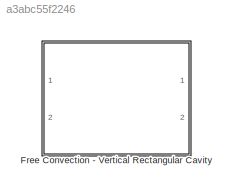
MODEL slx_a3abc55f2246
KIND library
CONFIG AbsTol = auto
CONFIG FixedStep = auto
CONFIG MaxStep = auto
CONFIG MinStep = auto
CONFIG RelTol = 1e-3
CONFIG SampleTimeConstraint = Unconstrained
CONFIG Solver = ode45
CONFIG SolverMode = Auto
CONFIG SolverName = ode45
CONFIG StartTime = 0.0
CONFIG StopTime = 10.0
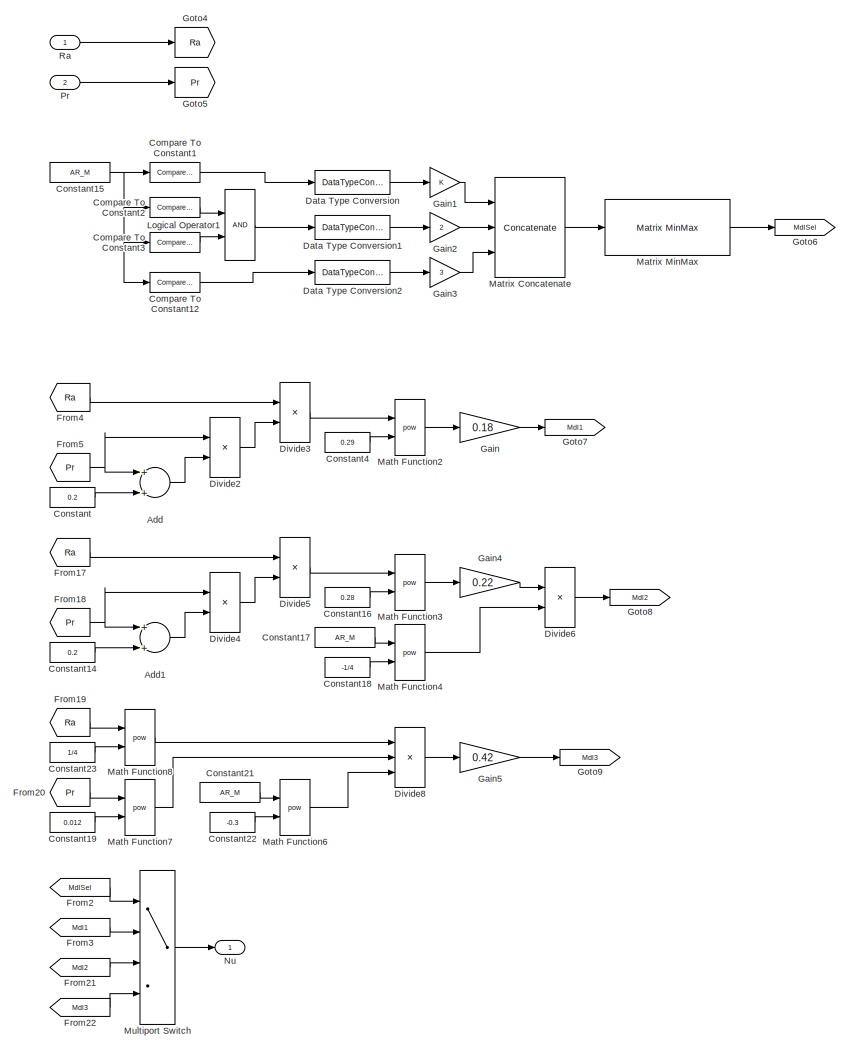
[diagram: Free Convection - Vertical Rectangular Cavity - part 1/2, left side, full height]
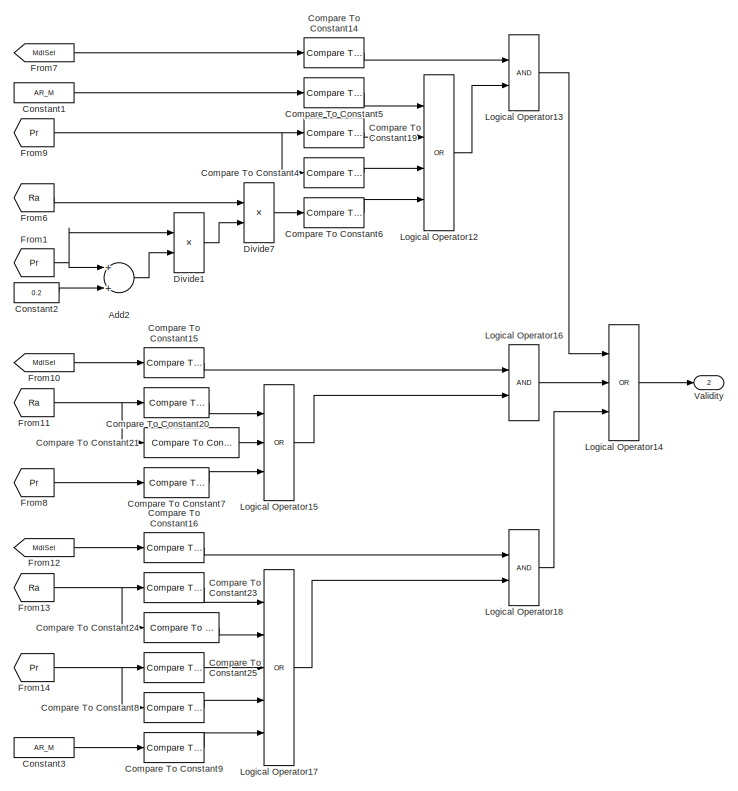
[diagram: Free Convection - Vertical Rectangular Cavity - part 2/2, right side, full height]
BLOCK [SubSystem] Free Convection - Vertical Rectangular Cavity
  Ports = [2, 2]
  RequestExecContextInheritance = off
BLOCK [Sum] Free Convection - Vertical Rectangular Cavity/Add
  InputSameDT = off
  OutDataTypeStr = Inherit: Inherit via internal rule
  Ports = [2, 1]
  SaturateOnIntegerOverflow = off
BLOCK [Sum] Free Convection - Vertical Rectangular Cavity/Add1
  InputSameDT = off
  OutDataTypeStr = Inherit: Inherit via internal rule
  Ports = [2, 1]
  SaturateOnIntegerOverflow = off
BLOCK [Sum] Free Convection - Vertical Rectangular Cavity/Add2
  InputSameDT = off
  OutDataTypeStr = Inherit: Inherit via internal rule
  Ports = [2, 1]
  SaturateOnIntegerOverflow = off
BLOCK [Reference] Free Convection - Vertical Rectangular Cavity/Compare To Constant1  REF=simulink/Logic and Bit
Operations/Compare
To Constant
  OutDataTypeStr = boolean
  Ports = [1, 1]
  SourceBlock = simulink/Logic and Bit\nOperations/Compare\nTo Constant
  SourceType = Compare To Constant
  ZeroCross = on
  const = 2
  relop = <=
BLOCK [Reference] Free Convection - Vertical Rectangular Cavity/Compare To Constant12  REF=simulink/Logic and Bit
Operations/Compare
To Constant
  OutDataTypeStr = boolean
  Ports = [1, 1]
  SourceBlock = simulink/Logic and Bit\nOperations/Compare\nTo Constant
  SourceType = Compare To Constant
  ZeroCross = on
  const = 10
  relop = >
BLOCK [Reference] Free Convection - Vertical Rectangular Cavity/Compare To Constant14  REF=simulink/Logic and Bit
Operations/Compare
To Constant
  OutDataTypeStr = boolean
  Ports = [1, 1]
  SourceBlock = simulink/Logic and Bit\nOperations/Compare\nTo Constant
  SourceType = Compare To Constant
  ZeroCross = on
  const = 1
  relop = ==
BLOCK [Reference] Free Convection - Vertical Rectangular Cavity/Compare To Constant15  REF=simulink/Logic and Bit
Operations/Compare
To Constant
  OutDataTypeStr = boolean
  Ports = [1, 1]
  SourceBlock = simulink/Logic and Bit\nOperations/Compare\nTo Constant
  SourceType = Compare To Constant
  ZeroCross = on
  const = 2
  relop = ==
BLOCK [Reference] Free Convection - Vertical Rectangular Cavity/Compare To Constant16  REF=simulink/Logic and Bit
Operations/Compare
To Constant
  OutDataTypeStr = boolean
  Ports = [1, 1]
  SourceBlock = simulink/Logic and Bit\nOperations/Compare\nTo Constant
  SourceType = Compare To Constant
  ZeroCross = on
  const = 3
  relop = ==
BLOCK [Reference] Free Convection - Vertical Rectangular Cavity/Compare To Constant19  REF=simulink/Logic and Bit
Operations/Compare
To Constant
  OutDataTypeStr = boolean
  Ports = [1, 1]
  SourceBlock = simulink/Logic and Bit\nOperations/Compare\nTo Constant
  SourceType = Compare To Constant
  ZeroCross = on
  const = 10^-3
  relop = <
BLOCK [Reference] Free Convection - Vertical Rectangular Cavity/Compare To Constant2  REF=simulink/Logic and Bit
Operations/Compare
To Constant
  OutDataTypeStr = boolean
  Ports = [1, 1]
  SourceBlock = simulink/Logic and Bit\nOperations/Compare\nTo Constant
  SourceType = Compare To Constant
  ZeroCross = on
  const = 2
  relop = >
BLOCK [Reference] Free Convection - Vertical Rectangular Cavity/Compare To Constant20  REF=simulink/Logic and Bit
Operations/Compare
To Constant
  OutDataTypeStr = boolean
  Ports = [1, 1]
  SourceBlock = simulink/Logic and Bit\nOperations/Compare\nTo Constant
  SourceType = Compare To Constant
  ZeroCross = on
  const = 10^3
  relop = <
BLOCK [Reference] Free Convection - Vertical Rectangular Cavity/Compare To Constant21  REF=simulink/Logic and Bit
Operations/Compare
To Constant
  OutDataTypeStr = boolean
  Ports = [1, 1]
  SourceBlock = simulink/Logic and Bit\nOperations/Compare\nTo Constant
  SourceType = Compare To Constant
  ZeroCross = on
  const = 10^10
  relop = >
BLOCK [Reference] Free Convection - Vertical Rectangular Cavity/Compare To Constant23  REF=simulink/Logic and Bit
Operations/Compare
To Constant
  OutDataTypeStr = boolean
  Ports = [1, 1]
  SourceBlock = simulink/Logic and Bit\nOperations/Compare\nTo Constant
  SourceType = Compare To Constant
  ZeroCross = on
  const = 10000
  relop = <
BLOCK [Reference] Free Convection - Vertical Rectangular Cavity/Compare To Constant24  REF=simulink/Logic and Bit
Operations/Compare
To Constant
  OutDataTypeStr = boolean
  Ports = [1, 1]
  SourceBlock = simulink/Logic and Bit\nOperations/Compare\nTo Constant
  SourceType = Compare To Constant
  ZeroCross = on
  const = 10^7
  relop = >
BLOCK [Reference] Free Convection - Vertical Rectangular Cavity/Compare To Constant25  REF=simulink/Logic and Bit
Operations/Compare
To Constant
  OutDataTypeStr = boolean
  Ports = [1, 1]
  SourceBlock = simulink/Logic and Bit\nOperations/Compare\nTo Constant
  SourceType = Compare To Constant
  ZeroCross = on
  const = 1
  relop = <
BLOCK [Reference] Free Convection - Vertical Rectangular Cavity/Compare To Constant3  REF=simulink/Logic and Bit
Operations/Compare
To Constant
  OutDataTypeStr = boolean
  Ports = [1, 1]
  SourceBlock = simulink/Logic and Bit\nOperations/Compare\nTo Constant
  SourceType = Compare To Constant
  ZeroCross = on
  const = 10
  relop = <=
BLOCK [Reference] Free Convection - Vertical Rectangular Cavity/Compare To Constant4  REF=simulink/Logic and Bit
Operations/Compare
To Constant
  OutDataTypeStr = boolean
  Ports = [1, 1]
  SourceBlock = simulink/Logic and Bit\nOperations/Compare\nTo Constant
  SourceType = Compare To Constant
  ZeroCross = on
  const = 10^5
  relop = >
BLOCK [Reference] Free Convection - Vertical Rectangular Cavity/Compare To Constant5  REF=simulink/Logic and Bit
Operations/Compare
To Constant
  OutDataTypeStr = boolean
  Ports = [1, 1]
  SourceBlock = simulink/Logic and Bit\nOperations/Compare\nTo Constant
  SourceType = Compare To Constant
  ZeroCross = on
  const = 1
  relop = <
BLOCK [Reference] Free Convection - Vertical Rectangular Cavity/Compare To Constant6  REF=simulink/Logic and Bit
Operations/Compare
To Constant
  OutDataTypeStr = boolean
  Ports = [1, 1]
  SourceBlock = simulink/Logic and Bit\nOperations/Compare\nTo Constant
  SourceType = Compare To Constant
  ZeroCross = on
  const = 10^3
  relop = <
BLOCK [Reference] Free Convection - Vertical Rectangular Cavity/Compare To Constant7  REF=simulink/Logic and Bit
Operations/Compare
To Constant
  OutDataTypeStr = boolean
  Ports = [1, 1]
  SourceBlock = simulink/Logic and Bit\nOperations/Compare\nTo Constant
  SourceType = Compare To Constant
  ZeroCross = on
  const = 10^5
  relop = >
BLOCK [Reference] Free Convection - Vertical Rectangular Cavity/Compare To Constant8  REF=simulink/Logic and Bit
Operations/Compare
To Constant
  OutDataTypeStr = boolean
  Ports = [1, 1]
  SourceBlock = simulink/Logic and Bit\nOperations/Compare\nTo Constant
  SourceType = Compare To Constant
  ZeroCross = on
  const = 2*10^4
  relop = >
BLOCK [Reference] Free Convection - Vertical Rectangular Cavity/Compare To Constant9  REF=simulink/Logic and Bit
Operations/Compare
To Constant
  OutDataTypeStr = boolean
  Ports = [1, 1]
  SourceBlock = simulink/Logic and Bit\nOperations/Compare\nTo Constant
  SourceType = Compare To Constant
  ZeroCross = on
  const = 40
  relop = >
BLOCK [Constant] Free Convection - Vertical Rectangular Cavity/Constant
  Value = 0.2
BLOCK [Constant] Free Convection - Vertical Rectangular Cavity/Constant1
  Value = AR_M
BLOCK [Constant] Free Convection - Vertical Rectangular Cavity/Constant14
  Value = 0.2
BLOCK [Constant] Free Convection - Vertical Rectangular Cavity/Constant15
  Value = AR_M
BLOCK [Constant] Free Convection - Vertical Rectangular Cavity/Constant16
  Value = 0.28
BLOCK [Constant] Free Convection - Vertical Rectangular Cavity/Constant17
  Value = AR_M
BLOCK [Constant] Free Convection - Vertical Rectangular Cavity/Constant18
  Value = -1/4
BLOCK [Constant] Free Convection - Vertical Rectangular Cavity/Constant19
  Value = 0.012
BLOCK [Constant] Free Convection - Vertical Rectangular Cavity/Constant2
  Value = 0.2
BLOCK [Constant] Free Convection - Vertical Rectangular Cavity/Constant21
  Value = AR_M
BLOCK [Constant] Free Convection - Vertical Rectangular Cavity/Constant22
  Value = -0.3
BLOCK [Constant] Free Convection - Vertical Rectangular Cavity/Constant23
  Value = 1/4
BLOCK [Constant] Free Convection - Vertical Rectangular Cavity/Constant3
  Value = AR_M
BLOCK [Constant] Free Convection - Vertical Rectangular Cavity/Constant4
  Value = 0.29
BLOCK [DataTypeConversion] Free Convection - Vertical Rectangular Cavity/Data Type Conversion
  OutDataTypeStr = double
  RndMeth = Floor
  SaturateOnIntegerOverflow = off
BLOCK [DataTypeConversion] Free Convection - Vertical Rectangular Cavity/Data Type Conversion1
  OutDataTypeStr = double
  RndMeth = Floor
  SaturateOnIntegerOverflow = off
BLOCK [DataTypeConversion] Free Convection - Vertical Rectangular Cavity/Data Type Conversion2
  OutDataTypeStr = double
  RndMeth = Floor
  SaturateOnIntegerOverflow = off
BLOCK [Product] Free Convection - Vertical Rectangular Cavity/Divide1
  InputSameDT = off
  Inputs = */
  OutDataTypeStr = Inherit: Inherit via internal rule
  Ports = [2, 1]
  RndMeth = Floor
  SaturateOnIntegerOverflow = off
BLOCK [Product] Free Convection - Vertical Rectangular Cavity/Divide2
  InputSameDT = off
  Inputs = */
  OutDataTypeStr = Inherit: Inherit via internal rule
  Ports = [2, 1]
  RndMeth = Floor
  SaturateOnIntegerOverflow = off
BLOCK [Product] Free Convection - Vertical Rectangular Cavity/Divide3
  InputSameDT = off
  Inputs = **
  OutDataTypeStr = Inherit: Inherit via internal rule
  Ports = [2, 1]
  RndMeth = Floor
  SaturateOnIntegerOverflow = off
BLOCK [Product] Free Convection - Vertical Rectangular Cavity/Divide4
  InputSameDT = off
  Inputs = */
  OutDataTypeStr = Inherit: Inherit via internal rule
  Ports = [2, 1]
  RndMeth = Floor
  SaturateOnIntegerOverflow = off
BLOCK [Product] Free Convection - Vertical Rectangular Cavity/Divide5
  InputSameDT = off
  Inputs = **
  OutDataTypeStr = Inherit: Inherit via internal rule
  Ports = [2, 1]
  RndMeth = Floor
  SaturateOnIntegerOverflow = off
BLOCK [Product] Free Convection - Vertical Rectangular Cavity/Divide6
  InputSameDT = off
  Inputs = **
  OutDataTypeStr = Inherit: Inherit via internal rule
  Ports = [2, 1]
  RndMeth = Floor
  SaturateOnIntegerOverflow = off
BLOCK [Product] Free Convection - Vertical Rectangular Cavity/Divide7
  InputSameDT = off
  Inputs = **
  OutDataTypeStr = Inherit: Inherit via internal rule
  Ports = [2, 1]
  RndMeth = Floor
  SaturateOnIntegerOverflow = off
BLOCK [Product] Free Convection - Vertical Rectangular Cavity/Divide8
  InputSameDT = off
  Inputs = ***
  OutDataTypeStr = Inherit: Inherit via internal rule
  Ports = [3, 1]
  RndMeth = Floor
  SaturateOnIntegerOverflow = off
BLOCK [From] Free Convection - Vertical Rectangular Cavity/From1
  GotoTag = Pr
BLOCK [From] Free Convection - Vertical Rectangular Cavity/From10
  GotoTag = MdlSel
BLOCK [From] Free Convection - Vertical Rectangular Cavity/From11
  GotoTag = Ra
BLOCK [From] Free Convection - Vertical Rectangular Cavity/From12
  GotoTag = MdlSel
BLOCK [From] Free Convection - Vertical Rectangular Cavity/From13
  GotoTag = Ra
BLOCK [From] Free Convection - Vertical Rectangular Cavity/From14
  GotoTag = Pr
BLOCK [From] Free Convection - Vertical Rectangular Cavity/From17
  GotoTag = Ra
BLOCK [From] Free Convection - Vertical Rectangular Cavity/From18
  GotoTag = Pr
BLOCK [From] Free Convection - Vertical Rectangular Cavity/From19
  GotoTag = Ra
BLOCK [From] Free Convection - Vertical Rectangular Cavity/From2
  GotoTag = MdlSel
BLOCK [From] Free Convection - Vertical Rectangular Cavity/From20
  GotoTag = Pr
BLOCK [From] Free Convection - Vertical Rectangular Cavity/From21
  GotoTag = Mdl2
BLOCK [From] Free Convection - Vertical Rectangular Cavity/From22
  GotoTag = Mdl3
BLOCK [From] Free Convection - Vertical Rectangular Cavity/From3
  GotoTag = Mdl1
BLOCK [From] Free Convection - Vertical Rectangular Cavity/From4
  GotoTag = Ra
BLOCK [From] Free Convection - Vertical Rectangular Cavity/From5
  GotoTag = Pr
BLOCK [From] Free Convection - Vertical Rectangular Cavity/From6
  GotoTag = Ra
BLOCK [From] Free Convection - Vertical Rectangular Cavity/From7
  GotoTag = MdlSel
BLOCK [From] Free Convection - Vertical Rectangular Cavity/From8
  GotoTag = Pr
BLOCK [From] Free Convection - Vertical Rectangular Cavity/From9
  GotoTag = Pr
BLOCK [Gain] Free Convection - Vertical Rectangular Cavity/Gain
  Gain = 0.18
  OutDataTypeStr = Inherit: Inherit via internal rule
  ParamDataTypeStr = Inherit: Inherit via internal rule
  SaturateOnIntegerOverflow = off
BLOCK [Gain] Free Convection - Vertical Rectangular Cavity/Gain1
  OutDataTypeStr = Inherit: Inherit via internal rule
  ParamDataTypeStr = Inherit: Inherit via internal rule
  SaturateOnIntegerOverflow = off
BLOCK [Gain] Free Convection - Vertical Rectangular Cavity/Gain2
  Gain = 2
  OutDataTypeStr = Inherit: Inherit via internal rule
  ParamDataTypeStr = Inherit: Inherit via internal rule
  SaturateOnIntegerOverflow = off
BLOCK [Gain] Free Convection - Vertical Rectangular Cavity/Gain3
  Gain = 3
  OutDataTypeStr = Inherit: Inherit via internal rule
  ParamDataTypeStr = Inherit: Inherit via internal rule
  SaturateOnIntegerOverflow = off
BLOCK [Gain] Free Convection - Vertical Rectangular Cavity/Gain4
  Gain = 0.22
  OutDataTypeStr = Inherit: Inherit via internal rule
  ParamDataTypeStr = Inherit: Inherit via internal rule
  SaturateOnIntegerOverflow = off
BLOCK [Gain] Free Convection - Vertical Rectangular Cavity/Gain5
  Gain = 0.42
  OutDataTypeStr = Inherit: Inherit via internal rule
  ParamDataTypeStr = Inherit: Inherit via internal rule
  SaturateOnIntegerOverflow = off
BLOCK [Goto] Free Convection - Vertical Rectangular Cavity/Goto4
  GotoTag = Ra
BLOCK [Goto] Free Convection - Vertical Rectangular Cavity/Goto5
  GotoTag = Pr
BLOCK [Goto] Free Convection - Vertical Rectangular Cavity/Goto6
  GotoTag = MdlSel
BLOCK [Goto] Free Convection - Vertical Rectangular Cavity/Goto7
  GotoTag = Mdl1
BLOCK [Goto] Free Convection - Vertical Rectangular Cavity/Goto8
  GotoTag = Mdl2
BLOCK [Goto] Free Convection - Vertical Rectangular Cavity/Goto9
  GotoTag = Mdl3
BLOCK [Logic] Free Convection - Vertical Rectangular Cavity/Logical Operator1
  AllPortsSameDT = off
  OutDataTypeStr = boolean
  Ports = [2, 1]
BLOCK [Logic] Free Convection - Vertical Rectangular Cavity/Logical Operator12
  AllPortsSameDT = off
  Inputs = 4
  Operator = OR
  OutDataTypeStr = boolean
  Ports = [4, 1]
BLOCK [Logic] Free Convection - Vertical Rectangular Cavity/Logical Operator13
  AllPortsSameDT = off
  OutDataTypeStr = boolean
  Ports = [2, 1]
BLOCK [Logic] Free Convection - Vertical Rectangular Cavity/Logical Operator14
  AllPortsSameDT = off
  Inputs = 3
  Operator = OR
  OutDataTypeStr = boolean
  Ports = [3, 1]
BLOCK [Logic] Free Convection - Vertical Rectangular Cavity/Logical Operator15
  AllPortsSameDT = off
  Inputs = 3
  Operator = OR
  OutDataTypeStr = boolean
  Ports = [3, 1]
BLOCK [Logic] Free Convection - Vertical Rectangular Cavity/Logical Operator16
  AllPortsSameDT = off
  OutDataTypeStr = boolean
  Ports = [2, 1]
BLOCK [Logic] Free Convection - Vertical Rectangular Cavity/Logical Operator17
  AllPortsSameDT = off
  Inputs = 5
  Operator = OR
  OutDataTypeStr = boolean
  Ports = [5, 1]
BLOCK [Logic] Free Convection - Vertical Rectangular Cavity/Logical Operator18
  AllPortsSameDT = off
  OutDataTypeStr = boolean
  Ports = [2, 1]
BLOCK [Math] Free Convection - Vertical Rectangular Cavity/Math Function2
  Operator = pow
  Ports = [2, 1]
BLOCK [Math] Free Convection - Vertical Rectangular Cavity/Math Function3
  Operator = pow
  Ports = [2, 1]
BLOCK [Math] Free Convection - Vertical Rectangular Cavity/Math Function4
  Operator = pow
  Ports = [2, 1]
BLOCK [Math] Free Convection - Vertical Rectangular Cavity/Math Function6
  Operator = pow
  Ports = [2, 1]
BLOCK [Math] Free Convection - Vertical Rectangular Cavity/Math Function7
  Operator = pow
  Ports = [2, 1]
BLOCK [Math] Free Convection - Vertical Rectangular Cavity/Math Function8
  Operator = pow
  Ports = [2, 1]
BLOCK [Concatenate] Free Convection - Vertical Rectangular Cavity/Matrix Concatenate
  ConcatenateDimension = 2
  Mode = Multidimensional array
  NumInputs = 3
  Ports = [3, 1]
BLOCK [Reference] Free Convection - Vertical Rectangular Cavity/Matrix MinMax  REF=lib_GenTools_MinMax/Matrix MinMax
  BN_M = gcb
  Ports = [1, 1]
  SourceBlock = lib_GenTools_MinMax/Matrix MinMax
  SourceType = TSAT: Matrix MinMax Block
  all_M = off
  cols_M = off
  minmax_M = off
  rows_M = on
BLOCK [MultiPortSwitch] Free Convection - Vertical Rectangular Cavity/Multiport Switch
  InputSameDT = off
  Ports = [4, 1]
  SaturateOnIntegerOverflow = off
BLOCK [Outport] Free Convection - Vertical Rectangular Cavity/Nu
  IconDisplay = Port number
BLOCK [Inport] Free Convection - Vertical Rectangular Cavity/Pr
  IconDisplay = Port number
  Port = 2
BLOCK [Inport] Free Convection - Vertical Rectangular Cavity/Ra
  IconDisplay = Port number
BLOCK [Outport] Free Convection - Vertical Rectangular Cavity/Validity
  IconDisplay = Port number
  Port = 2
LINE Free Convection - Vertical Rectangular Cavity/Add1:1 -> Free Convection - Vertical Rectangular Cavity/Divide4:2
LINE Free Convection - Vertical Rectangular Cavity/Add2:1 -> Free Convection - Vertical Rectangular Cavity/Divide1:2
LINE Free Convection - Vertical Rectangular Cavity/Add:1 -> Free Convection - Vertical Rectangular Cavity/Divide2:2
LINE Free Convection - Vertical Rectangular Cavity/Compare To Constant12:1 -> Free Convection - Vertical Rectangular Cavity/Data Type Conversion2:1
LINE Free Convection - Vertical Rectangular Cavity/Compare To Constant14:1 -> Free Convection - Vertical Rectangular Cavity/Logical Operator13:1
LINE Free Convection - Vertical Rectangular Cavity/Compare To Constant15:1 -> Free Convection - Vertical Rectangular Cavity/Logical Operator16:1
LINE Free Convection - Vertical Rectangular Cavity/Compare To Constant16:1 -> Free Convection - Vertical Rectangular Cavity/Logical Operator18:1
LINE Free Convection - Vertical Rectangular Cavity/Compare To Constant19:1 -> Free Convection - Vertical Rectangular Cavity/Logical Operator12:2
LINE Free Convection - Vertical Rectangular Cavity/Compare To Constant1:1 -> Free Convection - Vertical Rectangular Cavity/Data Type Conversion:1
LINE Free Convection - Vertical Rectangular Cavity/Compare To Constant20:1 -> Free Convection - Vertical Rectangular Cavity/Logical Operator15:1
LINE Free Convection - Vertical Rectangular Cavity/Compare To Constant21:1 -> Free Convection - Vertical Rectangular Cavity/Logical Operator15:2
LINE Free Convection - Vertical Rectangular Cavity/Compare To Constant23:1 -> Free Convection - Vertical Rectangular Cavity/Logical Operator17:1
LINE Free Convection - Vertical Rectangular Cavity/Compare To Constant24:1 -> Free Convection - Vertical Rectangular Cavity/Logical Operator17:2
LINE Free Convection - Vertical Rectangular Cavity/Compare To Constant25:1 -> Free Convection - Vertical Rectangular Cavity/Logical Operator17:3
LINE Free Convection - Vertical Rectangular Cavity/Compare To Constant2:1 -> Free Convection - Vertical Rectangular Cavity/Logical Operator1:1
LINE Free Convection - Vertical Rectangular Cavity/Compare To Constant3:1 -> Free Convection - Vertical Rectangular Cavity/Logical Operator1:2
LINE Free Convection - Vertical Rectangular Cavity/Compare To Constant4:1 -> Free Convection - Vertical Rectangular Cavity/Logical Operator12:3
LINE Free Convection - Vertical Rectangular Cavity/Compare To Constant5:1 -> Free Convection - Vertical Rectangular Cavity/Logical Operator12:1
LINE Free Convection - Vertical Rectangular Cavity/Compare To Constant6:1 -> Free Convection - Vertical Rectangular Cavity/Logical Operator12:4
LINE Free Convection - Vertical Rectangular Cavity/Compare To Constant7:1 -> Free Convection - Vertical Rectangular Cavity/Logical Operator15:3
LINE Free Convection - Vertical Rectangular Cavity/Compare To Constant8:1 -> Free Convection - Vertical Rectangular Cavity/Logical Operator17:4
LINE Free Convection - Vertical Rectangular Cavity/Compare To Constant9:1 -> Free Convection - Vertical Rectangular Cavity/Logical Operator17:5
LINE Free Convection - Vertical Rectangular Cavity/Constant14:1 -> Free Convection - Vertical Rectangular Cavity/Add1:2
NET Free Convection - Vertical Rectangular Cavity/Constant15:1 -> Free Convection - Vertical Rectangular Cavity/Compare To Constant12:1, Free Convection - Vertical Rectangular Cavity/Compare To Constant1:1, Free Convection - Vertical Rectangular Cavity/Compare To Constant2:1, Free Convection - Vertical Rectangular Cavity/Compare To Constant3:1
LINE Free Convection - Vertical Rectangular Cavity/Constant16:1 -> Free Convection - Vertical Rectangular Cavity/Math Function3:2
LINE Free Convection - Vertical Rectangular Cavity/Constant17:1 -> Free Convection - Vertical Rectangular Cavity/Math Function4:1
LINE Free Convection - Vertical Rectangular Cavity/Constant18:1 -> Free Convection - Vertical Rectangular Cavity/Math Function4:2
LINE Free Convection - Vertical Rectangular Cavity/Constant19:1 -> Free Convection - Vertical Rectangular Cavity/Math Function7:2
LINE Free Convection - Vertical Rectangular Cavity/Constant1:1 -> Free Convection - Vertical Rectangular Cavity/Compare To Constant5:1
LINE Free Convection - Vertical Rectangular Cavity/Constant21:1 -> Free Convection - Vertical Rectangular Cavity/Math Function6:1
LINE Free Convection - Vertical Rectangular Cavity/Constant22:1 -> Free Convection - Vertical Rectangular Cavity/Math Function6:2
LINE Free Convection - Vertical Rectangular Cavity/Constant23:1 -> Free Convection - Vertical Rectangular Cavity/Math Function8:2
LINE Free Convection - Vertical Rectangular Cavity/Constant2:1 -> Free Convection - Vertical Rectangular Cavity/Add2:2
LINE Free Convection - Vertical Rectangular Cavity/Constant3:1 -> Free Convection - Vertical Rectangular Cavity/Compare To Constant9:1
LINE Free Convection - Vertical Rectangular Cavity/Constant4:1 -> Free Convection - Vertical Rectangular Cavity/Math Function2:2
LINE Free Convection - Vertical Rectangular Cavity/Constant:1 -> Free Convection - Vertical Rectangular Cavity/Add:2
LINE Free Convection - Vertical Rectangular Cavity/Data Type Conversion1:1 -> Free Convection - Vertical Rectangular Cavity/Gain2:1
LINE Free Convection - Vertical Rectangular Cavity/Data Type Conversion2:1 -> Free Convection - Vertical Rectangular Cavity/Gain3:1
LINE Free Convection - Vertical Rectangular Cavity/Data Type Conversion:1 -> Free Convection - Vertical Rectangular Cavity/Gain1:1
LINE Free Convection - Vertical Rectangular Cavity/Divide1:1 -> Free Convection - Vertical Rectangular Cavity/Divide7:2
LINE Free Convection - Vertical Rectangular Cavity/Divide2:1 -> Free Convection - Vertical Rectangular Cavity/Divide3:2
LINE Free Convection - Vertical Rectangular Cavity/Divide3:1 -> Free Convection - Vertical Rectangular Cavity/Math Function2:1
LINE Free Convection - Vertical Rectangular Cavity/Divide4:1 -> Free Convection - Vertical Rectangular Cavity/Divide5:2
LINE Free Convection - Vertical Rectangular Cavity/Divide5:1 -> Free Convection - Vertical Rectangular Cavity/Math Function3:1
LINE Free Convection - Vertical Rectangular Cavity/Divide6:1 -> Free Convection - Vertical Rectangular Cavity/Goto8:1
LINE Free Convection - Vertical Rectangular Cavity/Divide7:1 -> Free Convection - Vertical Rectangular Cavity/Compare To Constant6:1
LINE Free Convection - Vertical Rectangular Cavity/Divide8:1 -> Free Convection - Vertical Rectangular Cavity/Gain5:1
LINE Free Convection - Vertical Rectangular Cavity/From10:1 -> Free Convection - Vertical Rectangular Cavity/Compare To Constant15:1
NET Free Convection - Vertical Rectangular Cavity/From11:1 -> Free Convection - Vertical Rectangular Cavity/Compare To Constant20:1, Free Convection - Vertical Rectangular Cavity/Compare To Constant21:1
LINE Free Convection - Vertical Rectangular Cavity/From12:1 -> Free Convection - Vertical Rectangular Cavity/Compare To Constant16:1
NET Free Convection - Vertical Rectangular Cavity/From13:1 -> Free Convection - Vertical Rectangular Cavity/Compare To Constant23:1, Free Convection - Vertical Rectangular Cavity/Compare To Constant24:1
NET Free Convection - Vertical Rectangular Cavity/From14:1 -> Free Convection - Vertical Rectangular Cavity/Compare To Constant25:1, Free Convection - Vertical Rectangular Cavity/Compare To Constant8:1
LINE Free Convection - Vertical Rectangular Cavity/From17:1 -> Free Convection - Vertical Rectangular Cavity/Divide5:1
NET Free Convection - Vertical Rectangular Cavity/From18:1 -> Free Convection - Vertical Rectangular Cavity/Add1:1, Free Convection - Vertical Rectangular Cavity/Divide4:1
LINE Free Convection - Vertical Rectangular Cavity/From19:1 -> Free Convection - Vertical Rectangular Cavity/Math Function8:1
NET Free Convection - Vertical Rectangular Cavity/From1:1 -> Free Convection - Vertical Rectangular Cavity/Add2:1, Free Convection - Vertical Rectangular Cavity/Divide1:1
LINE Free Convection - Vertical Rectangular Cavity/From20:1 -> Free Convection - Vertical Rectangular Cavity/Math Function7:1
LINE Free Convection - Vertical Rectangular Cavity/From21:1 -> Free Convection - Vertical Rectangular Cavity/Multiport Switch:3
LINE Free Convection - Vertical Rectangular Cavity/From22:1 -> Free Convection - Vertical Rectangular Cavity/Multiport Switch:4
LINE Free Convection - Vertical Rectangular Cavity/From2:1 -> Free Convection - Vertical Rectangular Cavity/Multiport Switch:1
LINE Free Convection - Vertical Rectangular Cavity/From3:1 -> Free Convection - Vertical Rectangular Cavity/Multiport Switch:2
LINE Free Convection - Vertical Rectangular Cavity/From4:1 -> Free Convection - Vertical Rectangular Cavity/Divide3:1
NET Free Convection - Vertical Rectangular Cavity/From5:1 -> Free Convection - Vertical Rectangular Cavity/Add:1, Free Convection - Vertical Rectangular Cavity/Divide2:1
LINE Free Convection - Vertical Rectangular Cavity/From6:1 -> Free Convection - Vertical Rectangular Cavity/Divide7:1
LINE Free Convection - Vertical Rectangular Cavity/From7:1 -> Free Convection - Vertical Rectangular Cavity/Compare To Constant14:1
LINE Free Convection - Vertical Rectangular Cavity/From8:1 -> Free Convection - Vertical Rectangular Cavity/Compare To Constant7:1
NET Free Convection - Vertical Rectangular Cavity/From9:1 -> Free Convection - Vertical Rectangular Cavity/Compare To Constant19:1, Free Convection - Vertical Rectangular Cavity/Compare To Constant4:1
LINE Free Convection - Vertical Rectangular Cavity/Gain1:1 -> Free Convection - Vertical Rectangular Cavity/Matrix Concatenate:1
LINE Free Convection - Vertical Rectangular Cavity/Gain2:1 -> Free Convection - Vertical Rectangular Cavity/Matrix Concatenate:2
LINE Free Convection - Vertical Rectangular Cavity/Gain3:1 -> Free Convection - Vertical Rectangular Cavity/Matrix Concatenate:3
LINE Free Convection - Vertical Rectangular Cavity/Gain4:1 -> Free Convection - Vertical Rectangular Cavity/Divide6:1
LINE Free Convection - Vertical Rectangular Cavity/Gain5:1 -> Free Convection - Vertical Rectangular Cavity/Goto9:1
LINE Free Convection - Vertical Rectangular Cavity/Gain:1 -> Free Convection - Vertical Rectangular Cavity/Goto7:1
LINE Free Convection - Vertical Rectangular Cavity/Logical Operator12:1 -> Free Convection - Vertical Rectangular Cavity/Logical Operator13:2
LINE Free Convection - Vertical Rectangular Cavity/Logical Operator13:1 -> Free Convection - Vertical Rectangular Cavity/Logical Operator14:1
LINE Free Convection - Vertical Rectangular Cavity/Logical Operator14:1 -> Free Convection - Vertical Rectangular Cavity/Validity:1
LINE Free Convection - Vertical Rectangular Cavity/Logical Operator15:1 -> Free Convection - Vertical Rectangular Cavity/Logical Operator16:2
LINE Free Convection - Vertical Rectangular Cavity/Logical Operator16:1 -> Free Convection - Vertical Rectangular Cavity/Logical Operator14:2
LINE Free Convection - Vertical Rectangular Cavity/Logical Operator17:1 -> Free Convection - Vertical Rectangular Cavity/Logical Operator18:2
LINE Free Convection - Vertical Rectangular Cavity/Logical Operator18:1 -> Free Convection - Vertical Rectangular Cavity/Logical Operator14:3
LINE Free Convection - Vertical Rectangular Cavity/Logical Operator1:1 -> Free Convection - Vertical Rectangular Cavity/Data Type Conversion1:1
LINE Free Convection - Vertical Rectangular Cavity/Math Function2:1 -> Free Convection - Vertical Rectangular Cavity/Gain:1
LINE Free Convection - Vertical Rectangular Cavity/Math Function3:1 -> Free Convection - Vertical Rectangular Cavity/Gain4:1
LINE Free Convection - Vertical Rectangular Cavity/Math Function4:1 -> Free Convection - Vertical Rectangular Cavity/Divide6:2
LINE Free Convection - Vertical Rectangular Cavity/Math Function6:1 -> Free Convection - Vertical Rectangular Cavity/Divide8:3
LINE Free Convection - Vertical Rectangular Cavity/Math Function7:1 -> Free Convection - Vertical Rectangular Cavity/Divide8:2
LINE Free Convection - Vertical Rectangular Cavity/Math Function8:1 -> Free Convection - Vertical Rectangular Cavity/Divide8:1
LINE Free Convection - Vertical Rectangular Cavity/Matrix Concatenate:1 -> Free Convection - Vertical Rectangular Cavity/Matrix MinMax:1
LINE Free Convection - Vertical Rectangular Cavity/Matrix MinMax:1 -> Free Convection - Vertical Rectangular Cavity/Goto6:1
LINE Free Convection - Vertical Rectangular Cavity/Multiport Switch:1 -> Free Convection - Vertical Rectangular Cavity/Nu:1
LINE Free Convection - Vertical Rectangular Cavity/Pr:1 -> Free Convection - Vertical Rectangular Cavity/Goto5:1
LINE Free Convection - Vertical Rectangular Cavity/Ra:1 -> Free Convection - Vertical Rectangular Cavity/Goto4:1
note: NET lines group one-source signal fan-out (src -> all destinations, sorted); 1:1 wires keep LINE
